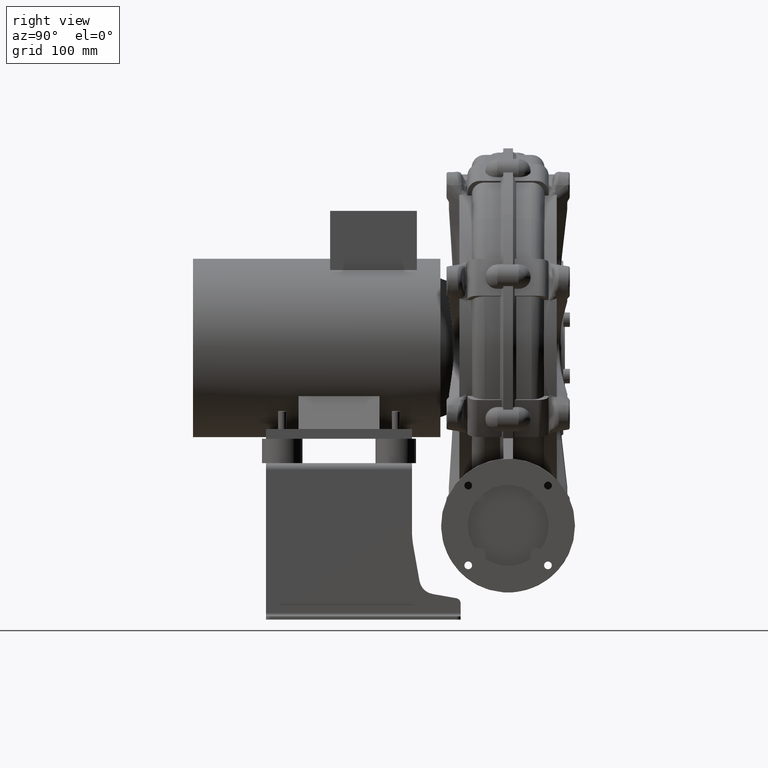
[diagram: clean part render]
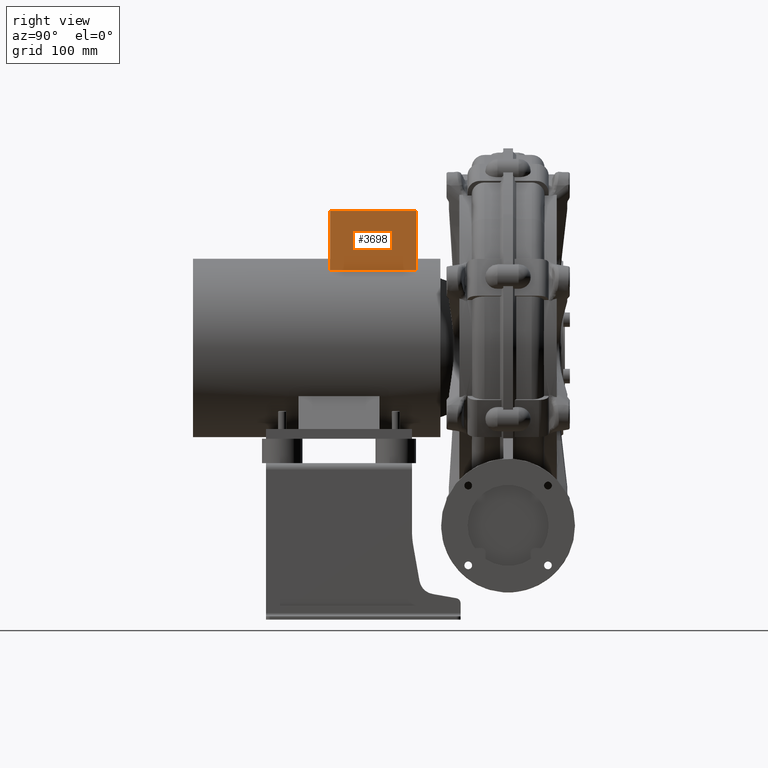
[diagram: same view with one face highlighted and labeled with its STEP entity id]
A machine part, right view. The second image highlights one B-rep face of the part: STEP entity #3698.
In plain terms, the highlighted planar face has unit normal (1, 0, 0).
Its self-contained STEP definition (entity closure, byte-faithful):
#3618=CARTESIAN_POINT('',(53.500000000000021,-11.000000000000263,314.99999999999989));
#3619=VERTEX_POINT('',#3618);
#3626=CARTESIAN_POINT('',(53.499999999999986,95.999999999999773,314.99999999999989));
#3627=VERTEX_POINT('',#3626);
#3628=CARTESIAN_POINT('',(53.499999999999986,95.999999999999773,314.99999999999989));
#3629=DIRECTION('',(0.0,-1.0,0.0));
#3630=VECTOR('',#3629,107.00000000000003);
#3631=LINE('',#3628,#3630);
#3632=EDGE_CURVE('',#3627,#3619,#3631,.T.);
#3650=CARTESIAN_POINT('',(53.499999999999986,95.999999999999773,242.11321449207679));
#3651=VERTEX_POINT('',#3650);
#3666=CARTESIAN_POINT('',(53.499999999999986,95.999999999999773,314.99999999999989));
#3667=DIRECTION('',(0.0,0.0,-1.0));
#3668=VECTOR('',#3667,72.886785507923008);
#3669=LINE('',#3666,#3668);
#3670=EDGE_CURVE('',#3627,#3651,#3669,.T.);
#3675=CARTESIAN_POINT('',(53.500000000000021,-11.000000000000263,314.99999999999989));
#3676=DIRECTION('',(1.0,0.0,0.0));
#3677=DIRECTION('',(0.0,1.0,0.0));
#3678=AXIS2_PLACEMENT_3D('',#3675,#3676,#3677);
#3679=PLANE('',#3678);
#3680=CARTESIAN_POINT('',(53.500000000000021,-11.000000000000263,242.11321449207679));
#3681=VERTEX_POINT('',#3680);
#3682=CARTESIAN_POINT('',(53.499999999999993,95.999999999999773,242.11321449207679));
#3683=DIRECTION('',(0.0,-1.0,0.0));
#3684=VECTOR('',#3683,107.00000000000003);
#3685=LINE('',#3682,#3684);
#3686=EDGE_CURVE('',#3651,#3681,#3685,.T.);
#3687=ORIENTED_EDGE('',*,*,#3686,.F.);
#3688=ORIENTED_EDGE('',*,*,#3670,.F.);
#3689=ORIENTED_EDGE('',*,*,#3632,.T.);
#3690=CARTESIAN_POINT('',(53.500000000000021,-11.000000000000263,314.99999999999989));
#3691=DIRECTION('',(0.0,0.0,-1.0));
#3692=VECTOR('',#3691,72.886785507923037);
#3693=LINE('',#3690,#3692);
#3694=EDGE_CURVE('',#3619,#3681,#3693,.T.);
#3695=ORIENTED_EDGE('',*,*,#3694,.T.);
#3696=EDGE_LOOP('',(#3687,#3688,#3689,#3695));
#3697=FACE_OUTER_BOUND('',#3696,.T.);
#3698=ADVANCED_FACE('',(#3697),#3679,.T.);